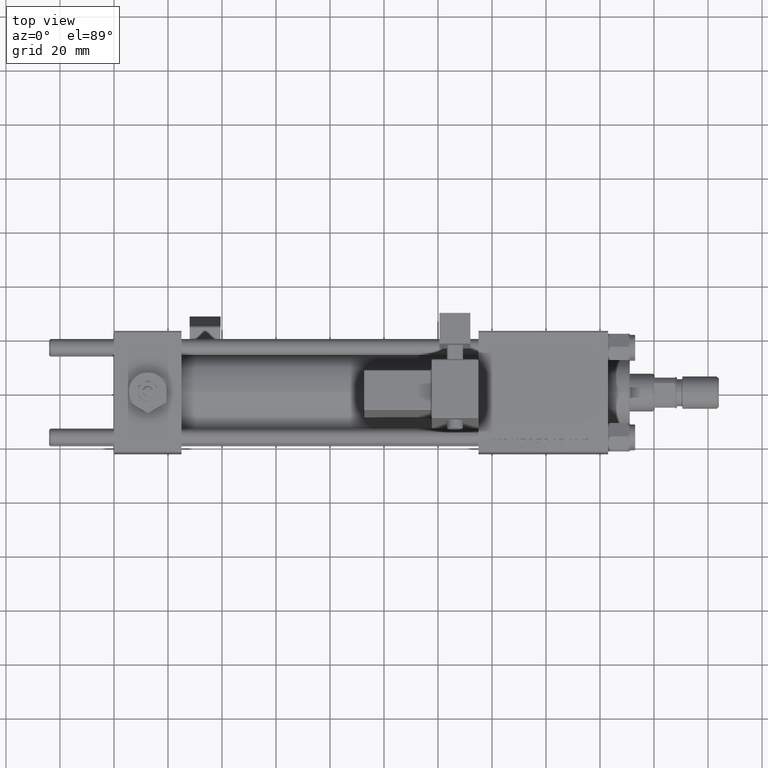
[diagram: clean part render]
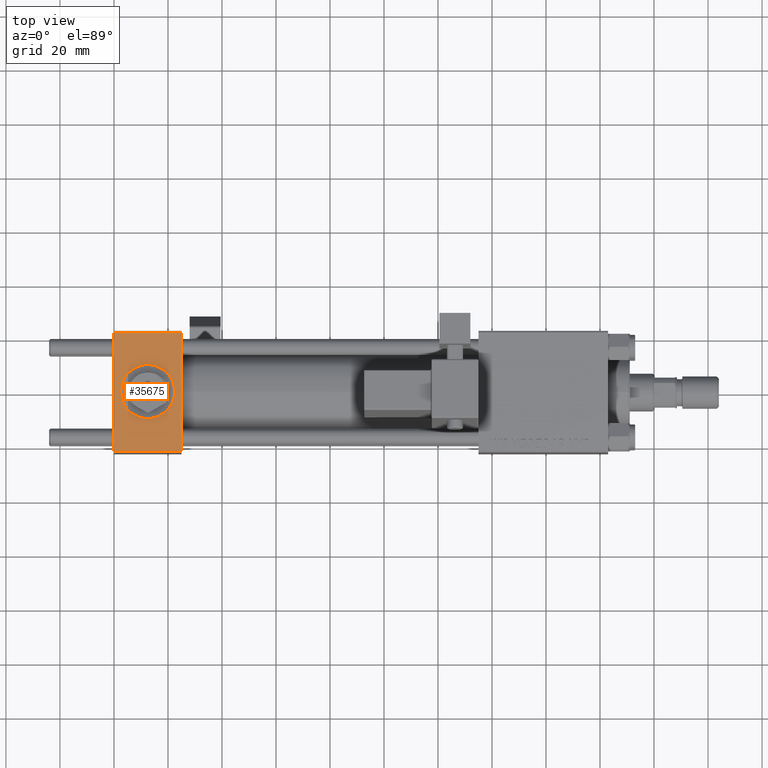
[diagram: same view with one face highlighted and labeled with its STEP entity id]
A machine part, top view. The second image highlights one B-rep face of the part: STEP entity #35675.
In plain terms, the highlighted planar face has unit normal (0, 0, -1).
Its self-contained STEP definition (entity closure, byte-faithful):
#700 = AXIS2_PLACEMENT_3D ( 'NONE', #37536, #12808, #46849 ) ;
#1363 = LINE ( 'NONE', #13992, #36957 ) ;
#1825 = AXIS2_PLACEMENT_3D ( 'NONE', #7439, #45335, #53602 ) ;
#1958 = LINE ( 'NONE', #48099, #38932 ) ;
#2483 = EDGE_CURVE ( 'NONE', #51283, #46627, #38864, .T. ) ;
#2933 = FACE_OUTER_BOUND ( 'NONE', #35513, .T. ) ;
#3362 = EDGE_CURVE ( 'NONE', #46627, #9671, #1958, .T. ) ;
#3467 = DIRECTION ( 'NONE',  ( 0.000000000000000000, 1.000000000000000000, 7.709882115452476934E-17 ) ) ;
#6224 = EDGE_CURVE ( 'NONE', #30655, #41572, #27266, .T. ) ;
#6789 = DIRECTION ( 'NONE',  ( 0.000000000000000000, 7.709882115452476934E-17, -1.000000000000000000 ) ) ;
#7218 = EDGE_CURVE ( 'NONE', #9671, #39612, #1363, .T. ) ;
#7439 = CARTESIAN_POINT ( 'NONE',  ( 12.50000000000000000, -1.734723475976807094E-15, 22.50000000000000000 ) ) ;
#8619 = EDGE_CURVE ( 'NONE', #51283, #39612, #8898, .T. ) ;
#8898 = LINE ( 'NONE', #13565, #51062 ) ;
#9188 = ORIENTED_EDGE ( 'NONE', *, *, #6224, .F. ) ;
#9671 = VERTEX_POINT ( 'NONE', #46605 ) ;
#9746 = DIRECTION ( 'NONE',  ( -1.000000000000000000, 0.000000000000000000, 0.000000000000000000 ) ) ;
#10709 = CARTESIAN_POINT ( 'NONE',  ( 2.500000000000003997, -5.100766768294543310E-16, 22.50000000000000000 ) ) ;
#11345 = ORIENTED_EDGE ( 'NONE', *, *, #7218, .T. ) ;
#12808 = DIRECTION ( 'NONE',  ( 0.000000000000000000, 0.000000000000000000, 1.000000000000000000 ) ) ;
#12994 = CARTESIAN_POINT ( 'NONE',  ( 22.50000000000000000, -1.734723475976807094E-15, 22.50000000000000000 ) ) ;
#13565 = CARTESIAN_POINT ( 'NONE',  ( 25.00000000000000000, 22.50000000000000000, 22.50000000000000355 ) ) ;
#13992 = CARTESIAN_POINT ( 'NONE',  ( 25.00000000000000000, -21.99999999999999289, 22.50000000000000000 ) ) ;
#18838 = VECTOR ( 'NONE', #9746, 1000.000000000000000 ) ;
#19738 = ORIENTED_EDGE ( 'NONE', *, *, #48044, .F. ) ;
#21007 = CARTESIAN_POINT ( 'NONE',  ( 25.00000000000000000, -21.99999999999997868, 22.50000000000000000 ) ) ;
#22820 = DIRECTION ( 'NONE',  ( 0.000000000000000000, -1.000000000000000000, -7.709882115452476934E-17 ) ) ;
#23060 = CARTESIAN_POINT ( 'NONE',  ( 0.000000000000000000, 21.99999999999999289, 22.50000000000000355 ) ) ;
#23198 = CARTESIAN_POINT ( 'NONE',  ( 0.000000000000000000, 21.99999999999999289, 22.50000000000000355 ) ) ;
#26022 = ORIENTED_EDGE ( 'NONE', *, *, #3362, .T. ) ;
#27266 = CIRCLE ( 'NONE', #1825, 9.999999999999998224 ) ;
#30304 = DIRECTION ( 'NONE',  ( 0.000000000000000000, -1.000000000000000000, -7.709882115452476934E-17 ) ) ;
#30655 = VERTEX_POINT ( 'NONE', #12994 ) ;
#35513 = EDGE_LOOP ( 'NONE', ( #26022, #11345, #38206, #39238 ) ) ;
#35675 = ADVANCED_FACE ( 'NONE', ( #45229, #2933 ), #44698, .F. ) ;
#36795 = EDGE_LOOP ( 'NONE', ( #9188, #19738 ) ) ;
#36957 = VECTOR ( 'NONE', #38442, 1000.000000000000000 ) ;
#37536 = CARTESIAN_POINT ( 'NONE',  ( 12.50000000000000000, -1.734723475976807094E-15, 22.50000000000000000 ) ) ;
#37771 = CARTESIAN_POINT ( 'NONE',  ( 25.00000000000000000, 21.99999999999999289, 22.50000000000000355 ) ) ;
#38206 = ORIENTED_EDGE ( 'NONE', *, *, #8619, .F. ) ;
#38442 = DIRECTION ( 'NONE',  ( 1.000000000000000000, 0.000000000000000000, 0.000000000000000000 ) ) ;
#38864 = LINE ( 'NONE', #23198, #18838 ) ;
#38932 = VECTOR ( 'NONE', #22820, 1000.000000000000000 ) ;
#39238 = ORIENTED_EDGE ( 'NONE', *, *, #2483, .T. ) ;
#39612 = VERTEX_POINT ( 'NONE', #21007 ) ;
#40060 = CIRCLE ( 'NONE', #700, 9.999999999999998224 ) ;
#41572 = VERTEX_POINT ( 'NONE', #10709 ) ;
#44698 = PLANE ( 'NONE',  #52965 ) ;
#45229 = FACE_BOUND ( 'NONE', #36795, .T. ) ;
#45335 = DIRECTION ( 'NONE',  ( 0.000000000000000000, 0.000000000000000000, 1.000000000000000000 ) ) ;
#46605 = CARTESIAN_POINT ( 'NONE',  ( 0.000000000000000000, -21.99999999999997868, 22.50000000000000000 ) ) ;
#46627 = VERTEX_POINT ( 'NONE', #23060 ) ;
#46849 = DIRECTION ( 'NONE',  ( 1.000000000000000000, 0.000000000000000000, 0.000000000000000000 ) ) ;
#48044 = EDGE_CURVE ( 'NONE', #41572, #30655, #40060, .T. ) ;
#48099 = CARTESIAN_POINT ( 'NONE',  ( 0.000000000000000000, 22.50000000000000000, 22.50000000000000355 ) ) ;
#51062 = VECTOR ( 'NONE', #30304, 1000.000000000000000 ) ;
#51283 = VERTEX_POINT ( 'NONE', #37771 ) ;
#52948 = CARTESIAN_POINT ( 'NONE',  ( 25.00000000000000000, 22.50000000000000000, 22.50000000000000355 ) ) ;
#52965 = AXIS2_PLACEMENT_3D ( 'NONE', #52948, #6789, #3467 ) ;
#53602 = DIRECTION ( 'NONE',  ( 1.000000000000000000, 0.000000000000000000, 0.000000000000000000 ) ) ;